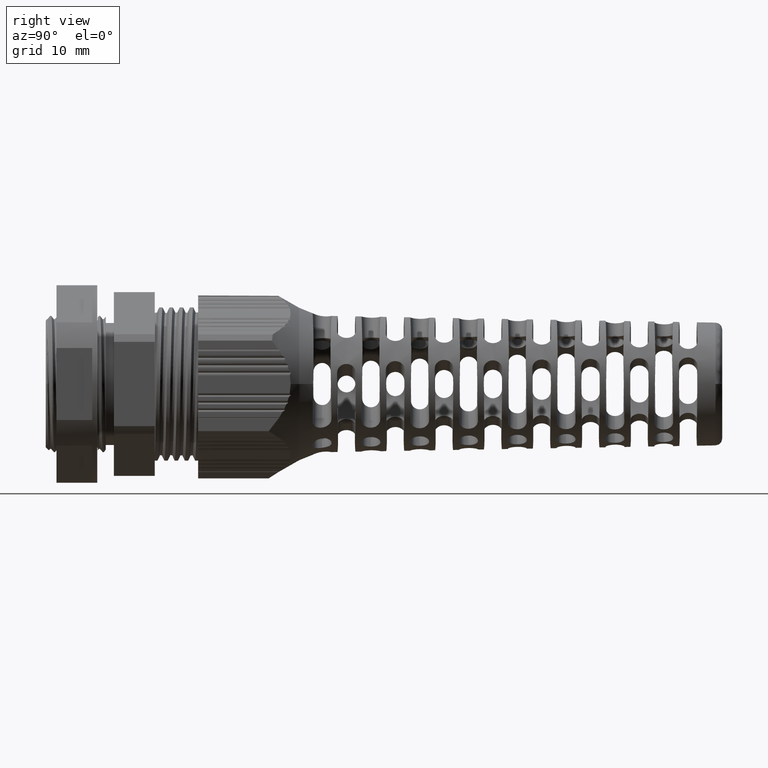
[diagram: clean part render]
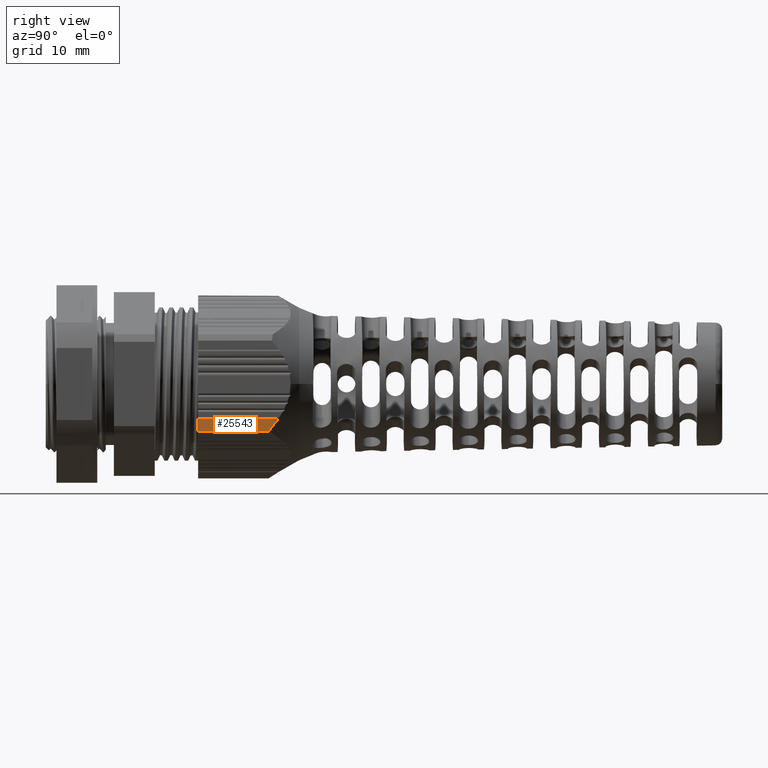
[diagram: same view with one face highlighted and labeled with its STEP entity id]
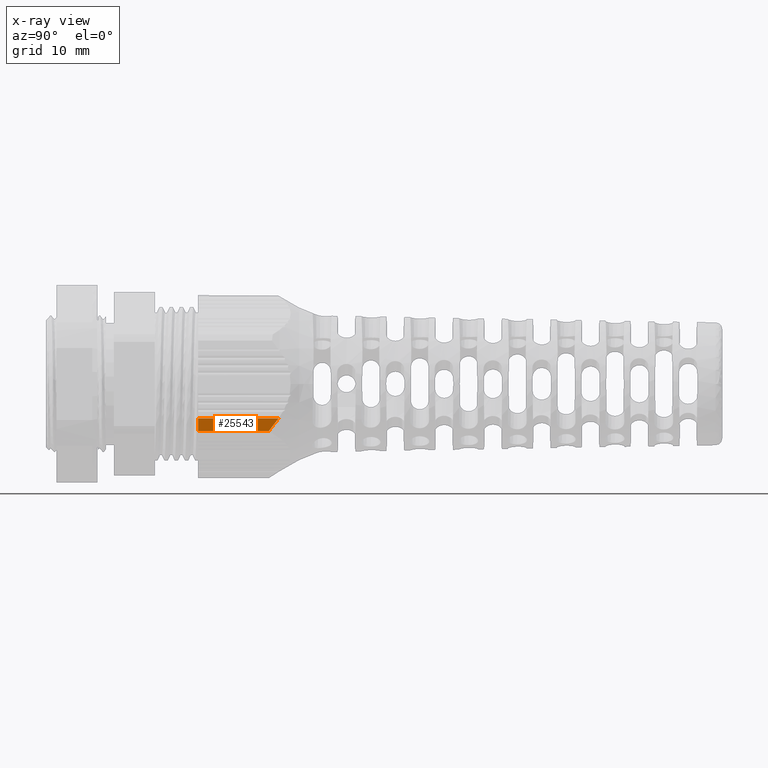
[diagram: x-ray of the same camera — body ghosted, the highlighted face saturated]
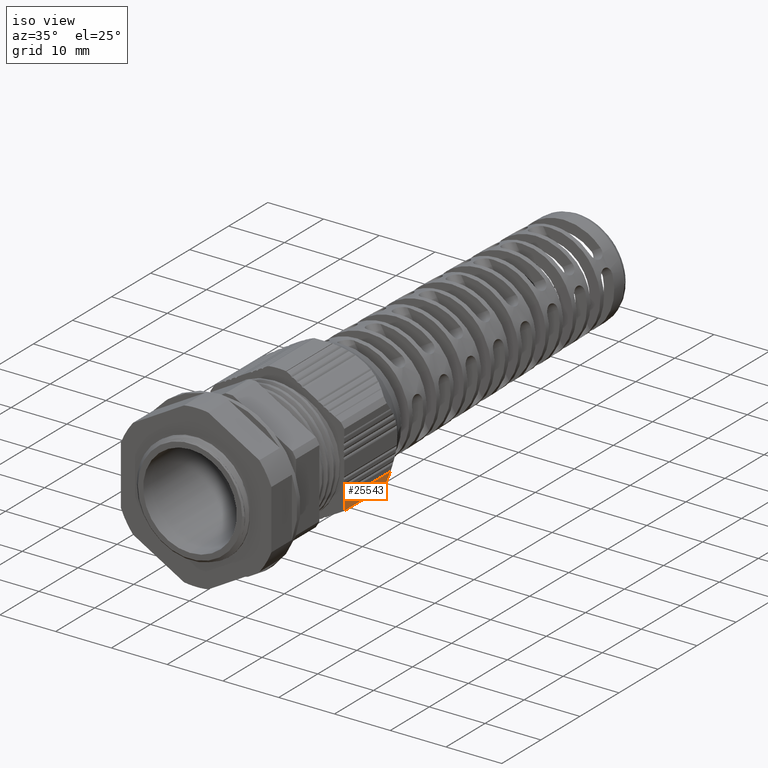
[diagram: same view with one face highlighted and labeled with its STEP entity id]
A machine part, right view. The second image highlights one B-rep face of the part: STEP entity #25543.
The next image is the same camera in x-ray: the body ghosted, the highlighted face saturated — about 0% of this face is hidden behind the body in this view.
A second angle (iso view) of the same face is appended — the face is thin or edge-on in the first view.
In plain terms, the highlighted planar face has unit normal (1, -0, -0).
Its self-contained STEP definition (entity closure, byte-faithful):
#8559 = FACE_OUTER_BOUND ( 'NONE', #18282, .T. ) ;
#8560 = PLANE ( 'NONE',  #23435 ) ;
#8567 = CARTESIAN_POINT ( 'NONE',  ( 62.00000000000063200, 99.49928399262589100, -6.928203230275761900 ) ) ;
#8568 = DIRECTION ( 'NONE',  ( 5.888896794120044300E-015, 1.000000000000000000, 0.0000000000000000000 ) ) ;
#8574 = DIRECTION ( 'NONE',  ( 1.000000000000000000, -5.888896794120044300E-015, -2.064294312328029600E-029 ) ) ;
#15193 = B_SPLINE_CURVE_WITH_KNOTS ( 'NONE', 3,
 ( #29934, #29973, #29953, #29971 ),
 .UNSPECIFIED., .F., .F.,
 ( 4, 4 ),
 ( 0.0000000000000000000, 0.002360836345843998200 ),
 .UNSPECIFIED. ) ;
#15724 = EDGE_CURVE ( 'NONE', #18115, #18056, #29877, .T. ) ;
#15750 = EDGE_CURVE ( 'NONE', #18105, #18092, #29976, .T. ) ;
#15753 = EDGE_CURVE ( 'NONE', #18056, #18092, #29941, .T. ) ;
#15755 = EDGE_CURVE ( 'NONE', #18115, #18105, #15193, .T. ) ;
#18056 = VERTEX_POINT ( 'NONE', #33297 ) ;
#18092 = VERTEX_POINT ( 'NONE', #33329 ) ;
#18105 = VERTEX_POINT ( 'NONE', #33346 ) ;
#18115 = VERTEX_POINT ( 'NONE', #33324 ) ;
#18282 = EDGE_LOOP ( 'NONE', ( #25962, #26127, #23313, #26023 ) ) ;
#23313 = ORIENTED_EDGE ( 'NONE', *, *, #15750, .F. ) ;
#23435 = AXIS2_PLACEMENT_3D ( 'NONE', #8567, #8574, #8568 ) ;
#25543 = ADVANCED_FACE ( 'NONE', ( #8559 ), #8560, .T. ) ;
#25962 = ORIENTED_EDGE ( 'NONE', *, *, #15724, .T. ) ;
#26023 = ORIENTED_EDGE ( 'NONE', *, *, #15755, .F. ) ;
#26127 = ORIENTED_EDGE ( 'NONE', *, *, #15753, .T. ) ;
#29840 = CARTESIAN_POINT ( 'NONE',  ( 62.00000000000063200, 99.49928399262589100, -5.059887350833805400 ) ) ;
#29873 = DIRECTION ( 'NONE',  ( -5.888896794120044300E-015, -1.000000000000000000, -0.0000000000000000000 ) ) ;
#29877 = LINE ( 'NONE', #29840, #32291 ) ;
#29934 = CARTESIAN_POINT ( 'NONE',  ( 62.00000000000024200, 34.32592682625320900, -5.059887350833803600 ) ) ;
#29941 = LINE ( 'NONE', #29952, #32276 ) ;
#29952 = CARTESIAN_POINT ( 'NONE',  ( 62.00000000000017800, 22.49999999999996400, -6.928203230275761900 ) ) ;
#29953 = CARTESIAN_POINT ( 'NONE',  ( 62.00000000000023400, 33.39867121517409700, -6.332394708064685000 ) ) ;
#29969 = DIRECTION ( 'NONE',  ( 1.764329296190252200E-019, -1.000000000000000000, -3.055907982283756500E-019 ) ) ;
#29971 = CARTESIAN_POINT ( 'NONE',  ( 61.99999997680078000, 32.88268592537854600, -6.928203243670212800 ) ) ;
#29973 = CARTESIAN_POINT ( 'NONE',  ( 62.00000000000024900, 33.88562924394660300, -5.714163213593609600 ) ) ;
#29976 = LINE ( 'NONE', #29977, #32285 ) ;
#29977 = CARTESIAN_POINT ( 'NONE',  ( 61.99999998222531200, 99.49928399262599000, -6.928203240538353600 ) ) ;
#29978 = DIRECTION ( 'NONE',  ( -2.064294312328029600E-029, 1.215641615798877500E-043, -1.000000000000000000 ) ) ;
#32276 = VECTOR ( 'NONE', #29978, 1000.000000000000000 ) ;
#32285 = VECTOR ( 'NONE', #29969, 1000.000000000000000 ) ;
#32291 = VECTOR ( 'NONE', #29873, 1000.000000000000000 ) ;
#33297 = CARTESIAN_POINT ( 'NONE',  ( 62.00000000000017800, 22.49999999999996100, -5.059887350833798300 ) ) ;
#33324 = CARTESIAN_POINT ( 'NONE',  ( 62.00000000000024200, 34.32592682625320900, -5.059887350833803600 ) ) ;
#33329 = CARTESIAN_POINT ( 'NONE',  ( 61.99999999111274500, 22.49999999999995400, -6.928203235407192300 ) ) ;
#33346 = CARTESIAN_POINT ( 'NONE',  ( 61.99999997680078000, 32.88268592537854600, -6.928203243670212800 ) ) ;